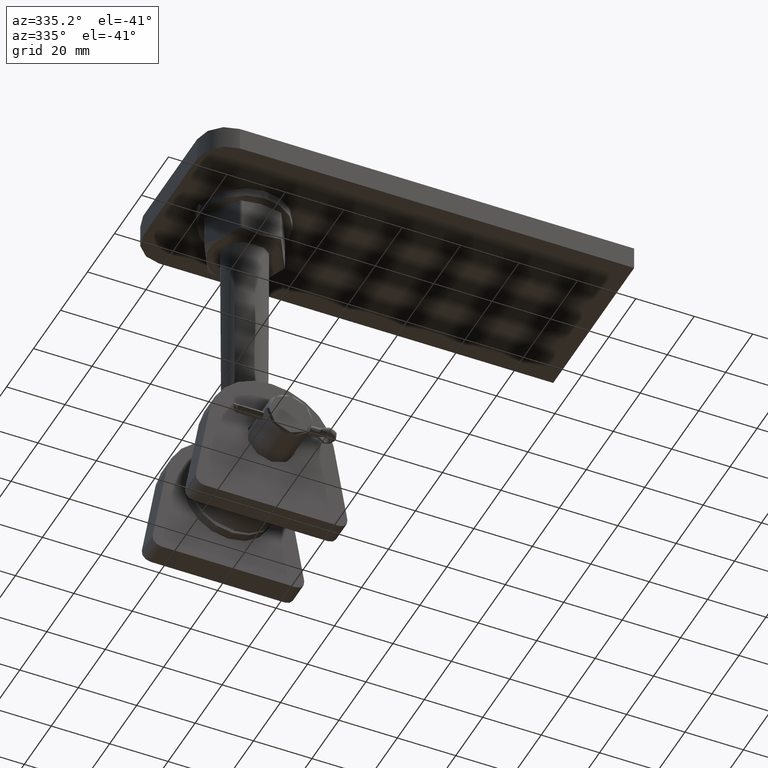
[diagram: clean part render]
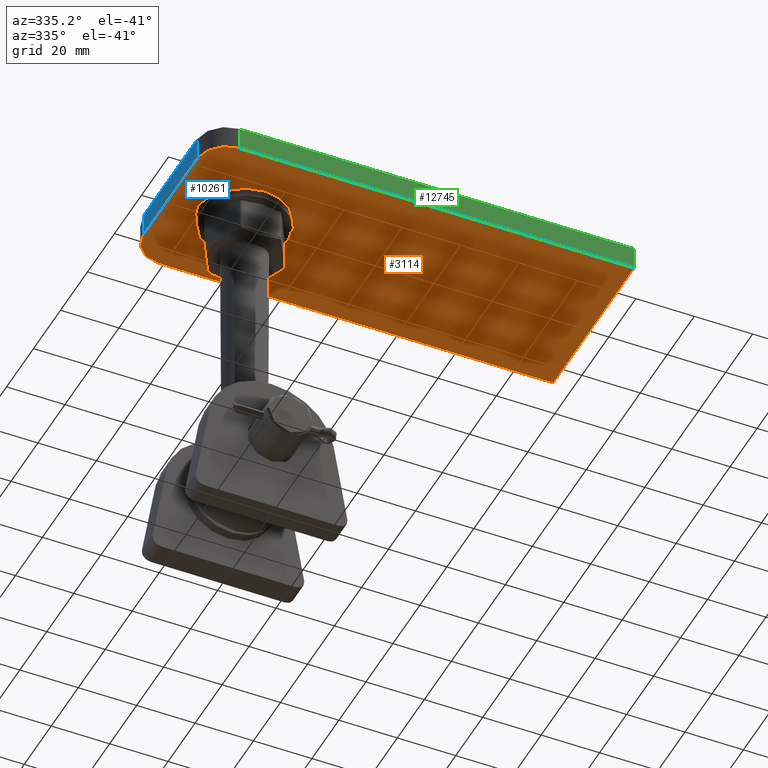
[diagram: same view with three faces highlighted in distinct colors, each labeled with its STEP entity id]
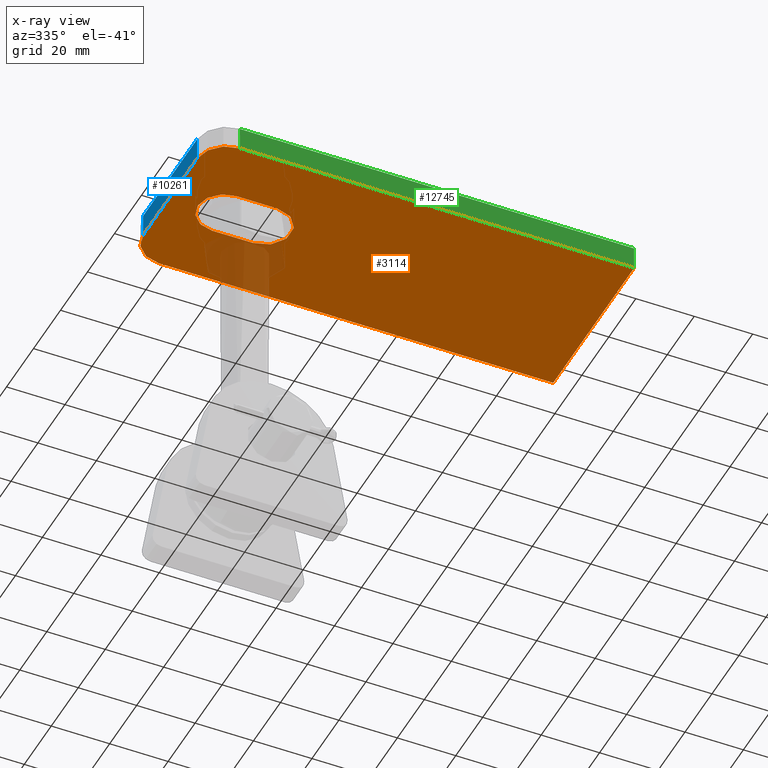
[diagram: x-ray of the same camera — body ghosted, the three highlighted faces saturated]
A machine part, auxiliary view with three faces highlighted in distinct colors.
The next image is the same camera in x-ray (body ghosted, the three faces saturated) — at least one of them is partly hidden behind the body in this view.
Their STEP definitions:

[orange] entity #3114 — the highlighted planar face has unit normal (0, 0, 1).
#17 = DIRECTION ( 'NONE',  ( -0.000000000000000000, 0.000000000000000000, 1.000000000000000000 ) ) ;
#53 = ORIENTED_EDGE ( 'NONE', *, *, #10035, .F. ) ;
#357 = ORIENTED_EDGE ( 'NONE', *, *, #1615, .F. ) ;
#379 = ORIENTED_EDGE ( 'NONE', *, *, #5531, .T. ) ;
#486 = DIRECTION ( 'NONE',  ( 1.000000000000000000, 0.000000000000000000, 0.000000000000000000 ) ) ;
#573 = LINE ( 'NONE', #5849, #10758 ) ;
#655 = LINE ( 'NONE', #1506, #15169 ) ;
#858 = VERTEX_POINT ( 'NONE', #16881 ) ;
#1009 = CARTESIAN_POINT ( 'NONE',  ( -62.49999999999997868, -30.00000000000000355, -4.000000000000003553 ) ) ;
#1506 = CARTESIAN_POINT ( 'NONE',  ( -53.99999999999999289, 9.000000000000001776, -4.000000000000003553 ) ) ;
#1615 = EDGE_CURVE ( 'NONE', #7490, #15211, #13708, .T. ) ;
#1647 = CARTESIAN_POINT ( 'NONE',  ( -72.50000000000000000, 29.99999999999999645, -4.000000000000003553 ) ) ;
#2155 = CARTESIAN_POINT ( 'NONE',  ( -72.50000000000000000, 29.99999999999999645, -4.000000000000003553 ) ) ;
#2594 = DIRECTION ( 'NONE',  ( 1.000000000000000000, 0.000000000000000000, 0.000000000000000000 ) ) ;
#2612 = EDGE_CURVE ( 'NONE', #15211, #2807, #4431, .T. ) ;
#2684 = VERTEX_POINT ( 'NONE', #4256 ) ;
#2718 = CARTESIAN_POINT ( 'NONE',  ( 72.49999999999998579, 29.99999999999999645, -4.000000000000003553 ) ) ;
#2807 = VERTEX_POINT ( 'NONE', #3082 ) ;
#3082 = CARTESIAN_POINT ( 'NONE',  ( -62.49999999999999289, 29.99999999999999645, -4.000000000000003553 ) ) ;
#3114 = ADVANCED_FACE ( 'NONE', ( #4210, #7745 ), #5077, .F. ) ;
#3158 = VECTOR ( 'NONE', #13555, 1000.000000000000000 ) ;
#3343 = EDGE_CURVE ( 'NONE', #7945, #7704, #10031, .T. ) ;
#4018 = DIRECTION ( 'NONE',  ( 0.000000000000000000, 0.000000000000000000, 1.000000000000000000 ) ) ;
#4148 = VECTOR ( 'NONE', #16230, 1000.000000000000000 ) ;
#4210 = FACE_OUTER_BOUND ( 'NONE', #11934, .T. ) ;
#4256 = CARTESIAN_POINT ( 'NONE',  ( -72.49999999999998579, -20.00000000000000711, -4.000000000000003553 ) ) ;
#4431 = LINE ( 'NONE', #1647, #3158 ) ;
#4704 = ORIENTED_EDGE ( 'NONE', *, *, #11076, .T. ) ;
#4976 = CARTESIAN_POINT ( 'NONE',  ( 72.49999999999998579, -30.00000000000000355, -4.000000000000003553 ) ) ;
#5077 = PLANE ( 'NONE',  #8811 ) ;
#5260 = DIRECTION ( 'NONE',  ( 0.000000000000000000, -0.000000000000000000, -1.000000000000000000 ) ) ;
#5307 = ORIENTED_EDGE ( 'NONE', *, *, #5580, .T. ) ;
#5438 = DIRECTION ( 'NONE',  ( -0.000000000000000000, 1.000000000000000000, -0.000000000000000000 ) ) ;
#5526 = CARTESIAN_POINT ( 'NONE',  ( -72.49999999999998579, -30.00000000000000355, -4.000000000000003553 ) ) ;
#5531 = EDGE_CURVE ( 'NONE', #6807, #2684, #9863, .T. ) ;
#5580 = EDGE_CURVE ( 'NONE', #5941, #16167, #12562, .T. ) ;
#5849 = CARTESIAN_POINT ( 'NONE',  ( -53.99999999999999289, -9.000000000000001776, -4.000000000000003553 ) ) ;
#5941 = VERTEX_POINT ( 'NONE', #15450 ) ;
#6155 = EDGE_CURVE ( 'NONE', #858, #7945, #573, .T. ) ;
#6187 = DIRECTION ( 'NONE',  ( 2.312964634635742957E-16, -1.000000000000000000, 0.000000000000000000 ) ) ;
#6624 = AXIS2_PLACEMENT_3D ( 'NONE', #13194, #13364, #12045 ) ;
#6807 = VERTEX_POINT ( 'NONE', #1009 ) ;
#7035 = AXIS2_PLACEMENT_3D ( 'NONE', #16354, #11125, #486 ) ;
#7490 = VERTEX_POINT ( 'NONE', #4976 ) ;
#7635 = DIRECTION ( 'NONE',  ( 1.000000000000000000, 0.000000000000000000, 0.000000000000000000 ) ) ;
#7691 = LINE ( 'NONE', #5526, #4148 ) ;
#7704 = VERTEX_POINT ( 'NONE', #13660 ) ;
#7745 = FACE_BOUND ( 'NONE', #11452, .T. ) ;
#7780 = CARTESIAN_POINT ( 'NONE',  ( -39.99999999999999289, -9.000000000000001776, -4.000000000000003553 ) ) ;
#7945 = VERTEX_POINT ( 'NONE', #7780 ) ;
#8026 = CARTESIAN_POINT ( 'NONE',  ( -53.99999999999999289, 0.000000000000000000, -4.000000000000003553 ) ) ;
#8549 = LINE ( 'NONE', #2155, #15182 ) ;
#8811 = AXIS2_PLACEMENT_3D ( 'NONE', #15783, #17, #14683 ) ;
#9335 = DIRECTION ( 'NONE',  ( 1.000000000000000000, 0.000000000000000000, 0.000000000000000000 ) ) ;
#9407 = CARTESIAN_POINT ( 'NONE',  ( -72.50000000000000000, 19.99999999999999289, -4.000000000000003553 ) ) ;
#9863 = CIRCLE ( 'NONE', #15380, 10.00000000000000178 ) ;
#9958 = ORIENTED_EDGE ( 'NONE', *, *, #2612, .F. ) ;
#10031 = CIRCLE ( 'NONE', #7035, 9.000000000000001776 ) ;
#10035 = EDGE_CURVE ( 'NONE', #15929, #2684, #8549, .T. ) ;
#10540 = DIRECTION ( 'NONE',  ( 0.000000000000000000, -0.000000000000000000, -1.000000000000000000 ) ) ;
#10758 = VECTOR ( 'NONE', #7635, 1000.000000000000000 ) ;
#11022 = EDGE_CURVE ( 'NONE', #15929, #2807, #16988, .T. ) ;
#11076 = EDGE_CURVE ( 'NONE', #16167, #858, #11960, .T. ) ;
#11125 = DIRECTION ( 'NONE',  ( 0.000000000000000000, 0.000000000000000000, 1.000000000000000000 ) ) ;
#11452 = EDGE_LOOP ( 'NONE', ( #5307, #4704, #12197, #15804, #14400 ) ) ;
#11812 = ORIENTED_EDGE ( 'NONE', *, *, #11022, .T. ) ;
#11934 = EDGE_LOOP ( 'NONE', ( #12399, #379, #53, #11812, #9958, #357 ) ) ;
#11960 = CIRCLE ( 'NONE', #6624, 9.000000000000001776 ) ;
#11994 = AXIS2_PLACEMENT_3D ( 'NONE', #17134, #10540, #2594 ) ;
#12045 = DIRECTION ( 'NONE',  ( 1.000000000000000000, 0.000000000000000000, 0.000000000000000000 ) ) ;
#12197 = ORIENTED_EDGE ( 'NONE', *, *, #6155, .T. ) ;
#12229 = CARTESIAN_POINT ( 'NONE',  ( 72.49999999999998579, 29.99999999999999645, -4.000000000000003553 ) ) ;
#12399 = ORIENTED_EDGE ( 'NONE', *, *, #14631, .F. ) ;
#12562 = CIRCLE ( 'NONE', #15142, 9.000000000000001776 ) ;
#13097 = VECTOR ( 'NONE', #5438, 1000.000000000000000 ) ;
#13194 = CARTESIAN_POINT ( 'NONE',  ( -53.99999999999999289, 0.000000000000000000, -4.000000000000003553 ) ) ;
#13364 = DIRECTION ( 'NONE',  ( 0.000000000000000000, 0.000000000000000000, 1.000000000000000000 ) ) ;
#13555 = DIRECTION ( 'NONE',  ( -1.000000000000000000, -0.000000000000000000, -0.000000000000000000 ) ) ;
#13587 = DIRECTION ( 'NONE',  ( -1.000000000000000000, -0.000000000000000000, -0.000000000000000000 ) ) ;
#13660 = CARTESIAN_POINT ( 'NONE',  ( -39.99999999999999289, 9.000000000000001776, -4.000000000000003553 ) ) ;
#13708 = LINE ( 'NONE', #2718, #13097 ) ;
#14210 = EDGE_CURVE ( 'NONE', #7704, #5941, #655, .T. ) ;
#14400 = ORIENTED_EDGE ( 'NONE', *, *, #14210, .T. ) ;
#14631 = EDGE_CURVE ( 'NONE', #6807, #7490, #7691, .T. ) ;
#14683 = DIRECTION ( 'NONE',  ( 1.000000000000000000, 0.000000000000000000, 0.000000000000000000 ) ) ;
#15142 = AXIS2_PLACEMENT_3D ( 'NONE', #8026, #4018, #9335 ) ;
#15169 = VECTOR ( 'NONE', #13587, 1000.000000000000000 ) ;
#15182 = VECTOR ( 'NONE', #6187, 1000.000000000000000 ) ;
#15211 = VERTEX_POINT ( 'NONE', #12229 ) ;
#15259 = CARTESIAN_POINT ( 'NONE',  ( -63.00000000000000000, 0.000000000000000000, -4.000000000000003553 ) ) ;
#15380 = AXIS2_PLACEMENT_3D ( 'NONE', #16093, #5260, #15967 ) ;
#15450 = CARTESIAN_POINT ( 'NONE',  ( -53.99999999999999289, 9.000000000000001776, -4.000000000000003553 ) ) ;
#15783 = CARTESIAN_POINT ( 'NONE',  ( 0.000000000000000000, 0.000000000000000000, -4.000000000000003553 ) ) ;
#15804 = ORIENTED_EDGE ( 'NONE', *, *, #3343, .T. ) ;
#15929 = VERTEX_POINT ( 'NONE', #9407 ) ;
#15967 = DIRECTION ( 'NONE',  ( 1.000000000000000000, 0.000000000000000000, 0.000000000000000000 ) ) ;
#16093 = CARTESIAN_POINT ( 'NONE',  ( -62.49999999999997868, -20.00000000000000355, -4.000000000000003553 ) ) ;
#16167 = VERTEX_POINT ( 'NONE', #15259 ) ;
#16230 = DIRECTION ( 'NONE',  ( 1.000000000000000000, 0.000000000000000000, 0.000000000000000000 ) ) ;
#16354 = CARTESIAN_POINT ( 'NONE',  ( -39.99999999999999289, 0.000000000000000000, -4.000000000000003553 ) ) ;
#16881 = CARTESIAN_POINT ( 'NONE',  ( -53.99999999999999289, -9.000000000000001776, -4.000000000000003553 ) ) ;
#16988 = CIRCLE ( 'NONE', #11994, 10.00000000000000178 ) ;
#17134 = CARTESIAN_POINT ( 'NONE',  ( -62.49999999999999289, 19.99999999999999645, -4.000000000000003553 ) ) ;

[blue] entity #10261 — the highlighted planar face has unit normal (1, 0, 0).
#1374 = EDGE_LOOP ( 'NONE', ( #11722, #10063, #6080, #14324 ) ) ;
#2114 = DIRECTION ( 'NONE',  ( 2.312964634635742957E-16, -1.000000000000000000, 0.000000000000000000 ) ) ;
#2155 = CARTESIAN_POINT ( 'NONE',  ( -72.50000000000000000, 29.99999999999999645, -4.000000000000003553 ) ) ;
#2530 = DIRECTION ( 'NONE',  ( 0.000000000000000000, 0.000000000000000000, -1.000000000000000000 ) ) ;
#2592 = CARTESIAN_POINT ( 'NONE',  ( -72.50000000000000000, 29.99999999999999645, 4.000000000000003553 ) ) ;
#2684 = VERTEX_POINT ( 'NONE', #4256 ) ;
#3956 = DIRECTION ( 'NONE',  ( 1.000000000000000000, 2.312964634635743450E-16, -0.000000000000000000 ) ) ;
#3990 = CARTESIAN_POINT ( 'NONE',  ( -72.49999999999998579, -20.00000000000000711, 4.000000000000003553 ) ) ;
#4027 = EDGE_CURVE ( 'NONE', #8243, #15929, #12683, .T. ) ;
#4256 = CARTESIAN_POINT ( 'NONE',  ( -72.49999999999998579, -20.00000000000000711, -4.000000000000003553 ) ) ;
#5924 = LINE ( 'NONE', #7192, #15060 ) ;
#6080 = ORIENTED_EDGE ( 'NONE', *, *, #11644, .F. ) ;
#6187 = DIRECTION ( 'NONE',  ( 2.312964634635742957E-16, -1.000000000000000000, 0.000000000000000000 ) ) ;
#7192 = CARTESIAN_POINT ( 'NONE',  ( -72.50000000000000000, 29.99999999999999645, 4.000000000000003553 ) ) ;
#8243 = VERTEX_POINT ( 'NONE', #8244 ) ;
#8244 = CARTESIAN_POINT ( 'NONE',  ( -72.50000000000000000, 19.99999999999999289, 4.000000000000003553 ) ) ;
#8307 = VECTOR ( 'NONE', #2530, 1000.000000000000000 ) ;
#8549 = LINE ( 'NONE', #2155, #15182 ) ;
#9194 = LINE ( 'NONE', #3990, #12310 ) ;
#9407 = CARTESIAN_POINT ( 'NONE',  ( -72.50000000000000000, 19.99999999999999289, -4.000000000000003553 ) ) ;
#9794 = FACE_OUTER_BOUND ( 'NONE', #1374, .T. ) ;
#10035 = EDGE_CURVE ( 'NONE', #15929, #2684, #8549, .T. ) ;
#10063 = ORIENTED_EDGE ( 'NONE', *, *, #12726, .T. ) ;
#10261 = ADVANCED_FACE ( 'NONE', ( #9794 ), #14582, .F. ) ;
#10525 = CARTESIAN_POINT ( 'NONE',  ( -72.50000000000000000, 19.99999999999999289, 4.000000000000003553 ) ) ;
#11644 = EDGE_CURVE ( 'NONE', #8243, #13816, #5924, .T. ) ;
#11722 = ORIENTED_EDGE ( 'NONE', *, *, #10035, .T. ) ;
#12310 = VECTOR ( 'NONE', #13281, 1000.000000000000000 ) ;
#12683 = LINE ( 'NONE', #10525, #8307 ) ;
#12726 = EDGE_CURVE ( 'NONE', #2684, #13816, #9194, .T. ) ;
#13246 = DIRECTION ( 'NONE',  ( -2.312964634635743450E-16, 1.000000000000000000, 0.000000000000000000 ) ) ;
#13281 = DIRECTION ( 'NONE',  ( 0.000000000000000000, -0.000000000000000000, 1.000000000000000000 ) ) ;
#13816 = VERTEX_POINT ( 'NONE', #17185 ) ;
#14191 = AXIS2_PLACEMENT_3D ( 'NONE', #2592, #3956, #13246 ) ;
#14324 = ORIENTED_EDGE ( 'NONE', *, *, #4027, .T. ) ;
#14582 = PLANE ( 'NONE',  #14191 ) ;
#15060 = VECTOR ( 'NONE', #2114, 1000.000000000000000 ) ;
#15182 = VECTOR ( 'NONE', #6187, 1000.000000000000000 ) ;
#15929 = VERTEX_POINT ( 'NONE', #9407 ) ;
#17185 = CARTESIAN_POINT ( 'NONE',  ( -72.49999999999998579, -20.00000000000000711, 4.000000000000003553 ) ) ;

[green] entity #12745 — the highlighted planar face has unit normal (0, 1, 0).
#743 = ORIENTED_EDGE ( 'NONE', *, *, #14488, .F. ) ;
#1002 = CARTESIAN_POINT ( 'NONE',  ( -62.49999999999997868, -30.00000000000000355, 4.000000000000003553 ) ) ;
#1009 = CARTESIAN_POINT ( 'NONE',  ( -62.49999999999997868, -30.00000000000000355, -4.000000000000003553 ) ) ;
#1141 = LINE ( 'NONE', #9881, #14213 ) ;
#1385 = VERTEX_POINT ( 'NONE', #2325 ) ;
#2325 = CARTESIAN_POINT ( 'NONE',  ( -62.49999999999997868, -30.00000000000000355, 4.000000000000003553 ) ) ;
#2880 = ORIENTED_EDGE ( 'NONE', *, *, #12624, .T. ) ;
#3284 = DIRECTION ( 'NONE',  ( -0.000000000000000000, -0.000000000000000000, -1.000000000000000000 ) ) ;
#4148 = VECTOR ( 'NONE', #16230, 1000.000000000000000 ) ;
#4162 = DIRECTION ( 'NONE',  ( -0.000000000000000000, 0.000000000000000000, -1.000000000000000000 ) ) ;
#4976 = CARTESIAN_POINT ( 'NONE',  ( 72.49999999999998579, -30.00000000000000355, -4.000000000000003553 ) ) ;
#5248 = VECTOR ( 'NONE', #4162, 1000.000000000000000 ) ;
#5348 = DIRECTION ( 'NONE',  ( 0.000000000000000000, -0.000000000000000000, 1.000000000000000000 ) ) ;
#5422 = EDGE_CURVE ( 'NONE', #15249, #7490, #1141, .T. ) ;
#5526 = CARTESIAN_POINT ( 'NONE',  ( -72.49999999999998579, -30.00000000000000355, -4.000000000000003553 ) ) ;
#6687 = LINE ( 'NONE', #1002, #5248 ) ;
#6807 = VERTEX_POINT ( 'NONE', #1009 ) ;
#7099 = VECTOR ( 'NONE', #8481, 1000.000000000000000 ) ;
#7490 = VERTEX_POINT ( 'NONE', #4976 ) ;
#7691 = LINE ( 'NONE', #5526, #4148 ) ;
#8481 = DIRECTION ( 'NONE',  ( 1.000000000000000000, 0.000000000000000000, 0.000000000000000000 ) ) ;
#8640 = EDGE_LOOP ( 'NONE', ( #743, #2880, #12360, #9853 ) ) ;
#8649 = AXIS2_PLACEMENT_3D ( 'NONE', #14671, #9433, #5348 ) ;
#9433 = DIRECTION ( 'NONE',  ( 0.000000000000000000, 1.000000000000000000, 0.000000000000000000 ) ) ;
#9853 = ORIENTED_EDGE ( 'NONE', *, *, #5422, .F. ) ;
#9881 = CARTESIAN_POINT ( 'NONE',  ( 72.49999999999998579, -30.00000000000000355, 4.000000000000003553 ) ) ;
#10423 = CARTESIAN_POINT ( 'NONE',  ( 72.49999999999998579, -30.00000000000000355, 4.000000000000003553 ) ) ;
#12360 = ORIENTED_EDGE ( 'NONE', *, *, #14631, .T. ) ;
#12624 = EDGE_CURVE ( 'NONE', #1385, #6807, #6687, .T. ) ;
#12745 = ADVANCED_FACE ( 'NONE', ( #15614 ), #13230, .F. ) ;
#13230 = PLANE ( 'NONE',  #8649 ) ;
#13745 = LINE ( 'NONE', #15042, #7099 ) ;
#14213 = VECTOR ( 'NONE', #3284, 1000.000000000000000 ) ;
#14488 = EDGE_CURVE ( 'NONE', #1385, #15249, #13745, .T. ) ;
#14631 = EDGE_CURVE ( 'NONE', #6807, #7490, #7691, .T. ) ;
#14671 = CARTESIAN_POINT ( 'NONE',  ( -72.49999999999998579, -30.00000000000000355, 4.000000000000003553 ) ) ;
#15042 = CARTESIAN_POINT ( 'NONE',  ( -72.49999999999998579, -30.00000000000000355, 4.000000000000003553 ) ) ;
#15249 = VERTEX_POINT ( 'NONE', #10423 ) ;
#15614 = FACE_OUTER_BOUND ( 'NONE', #8640, .T. ) ;
#16230 = DIRECTION ( 'NONE',  ( 1.000000000000000000, 0.000000000000000000, 0.000000000000000000 ) ) ;